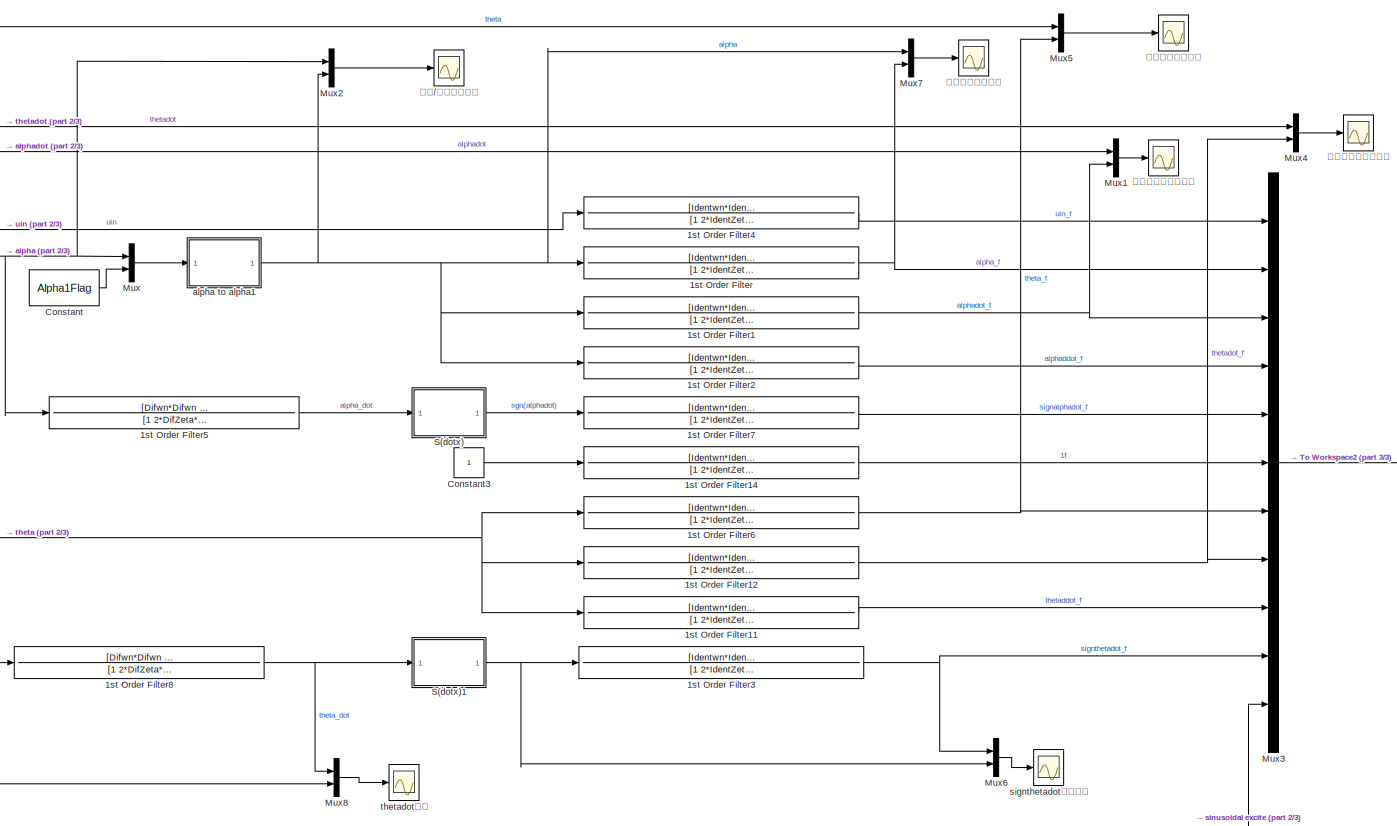
[diagram: root canvas - part 1/3, center side, full height]
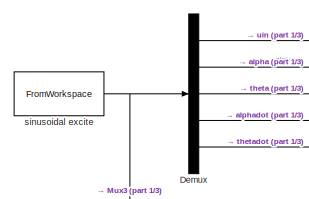
[diagram: root canvas - part 2/3, middle left region]
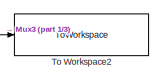
[diagram: root canvas - part 3/3, middle right region]
MODEL slx_19c1c53535d9
KIND model
CONFIG AbsTol = 1e-6
CONFIG EnableMultiTasking = on
CONFIG FixedStep = 0.001
CONFIG MaxStep = auto
CONFIG MinStep = auto
CONFIG RelTol = 1e-6
CONFIG SampleTimeConstraint = Unconstrained
CONFIG SolverName = ode15s
CONFIG StartTime = 0.0
CONFIG StopTime = 10
BLOCK [TransferFcn] 1st Order Filter
  Denominator = [1 2*IdentZeta*Identwn Identwn*Identwn]
  Numerator = [Identwn*Identwn]
BLOCK [TransferFcn] 1st Order Filter1
  Denominator = [1 2*IdentZeta*Identwn Identwn*Identwn]
  Numerator = [Identwn*Identwn 0]
BLOCK [TransferFcn] 1st Order Filter11
  Denominator = [1 2*IdentZeta*Identwn Identwn*Identwn]
  Numerator = [Identwn*Identwn 0 0]
BLOCK [TransferFcn] 1st Order Filter12
  Denominator = [1 2*IdentZeta*Identwn Identwn*Identwn]
  Numerator = [Identwn*Identwn 0]
BLOCK [TransferFcn] 1st Order Filter14
  Denominator = [1 2*IdentZeta*Identwn Identwn*Identwn]
  Numerator = [Identwn*Identwn]
BLOCK [TransferFcn] 1st Order Filter2
  Denominator = [1 2*IdentZeta*Identwn Identwn*Identwn]
  Numerator = [Identwn*Identwn 0 0]
BLOCK [TransferFcn] 1st Order Filter3
  Denominator = [1 2*IdentZeta*Identwn Identwn*Identwn]
  Numerator = [Identwn*Identwn]
BLOCK [TransferFcn] 1st Order Filter4
  Denominator = [1 2*IdentZeta*Identwn Identwn*Identwn]
  Numerator = [Identwn*Identwn]
BLOCK [TransferFcn] 1st Order Filter5
  Denominator = [1 2*DifZeta*Difwn Difwn*Difwn]
  Numerator = [Difwn*Difwn 0]
BLOCK [TransferFcn] 1st Order Filter6
  Denominator = [1 2*IdentZeta*Identwn Identwn*Identwn]
  Numerator = [Identwn*Identwn]
BLOCK [TransferFcn] 1st Order Filter7
  Denominator = [1 2*IdentZeta*Identwn Identwn*Identwn]
  Numerator = [Identwn*Identwn]
BLOCK [TransferFcn] 1st Order Filter8
  Denominator = [1 2*DifZeta*Difwn Difwn*Difwn]
  Numerator = [Difwn*Difwn 0]
BLOCK [Constant] Constant
  Value = Alpha1Flag
BLOCK [Constant] Constant3
BLOCK [Demux] Demux
  Outputs = 5
BLOCK [Mux] Mux
  DisplayOption = bar
  Inputs = 2
BLOCK [Mux] Mux1
  DisplayOption = bar
  Inputs = 2
BLOCK [Mux] Mux2
  DisplayOption = bar
  Inputs = 2
BLOCK [Mux] Mux3
  DisplayOption = bar
  Inputs = 11
BLOCK [Mux] Mux4
  DisplayOption = bar
  Inputs = 2
BLOCK [Mux] Mux5
  DisplayOption = bar
  Inputs = 2
BLOCK [Mux] Mux6
  DisplayOption = bar
  Inputs = 2
BLOCK [Mux] Mux7
  DisplayOption = bar
  Inputs = 2
BLOCK [Mux] Mux8
  DisplayOption = bar
  Inputs = 2
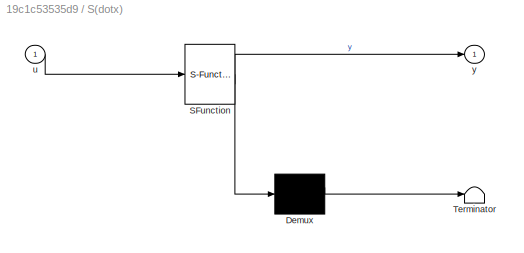
BLOCK [SubSystem] S(dotx)
  ErrorFcn = Stateflow.Translate.translate
  PermitHierarchicalResolution = ExplicitOnly
  SFBlockType = MATLAB Function
  TreatAsAtomicUnit = on
BLOCK [Demux] S(dotx)/ Demux 
  Outputs = 1
BLOCK [S-Function] S(dotx)/ SFunction 
  EnableBusSupport = on
  FunctionName = sf_sfun
  PortCounts = [1 2]
  SFcnIsStateOwnerBlock = off
  SFunctionDeploymentMode = off
  Tag = Stateflow S-Function 7
BLOCK [Terminator] S(dotx)/ Terminator 
BLOCK [Inport] S(dotx)/u
BLOCK [Outport] S(dotx)/y
  VectorParamsAs1DForOutWhenUnconnected = off
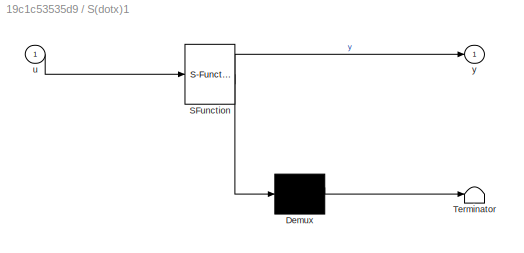
BLOCK [SubSystem] S(dotx)1
  ErrorFcn = Stateflow.Translate.translate
  PermitHierarchicalResolution = ExplicitOnly
  SFBlockType = MATLAB Function
  TreatAsAtomicUnit = on
BLOCK [Demux] S(dotx)1/ Demux 
  Outputs = 1
BLOCK [S-Function] S(dotx)1/ SFunction 
  EnableBusSupport = on
  FunctionName = sf_sfun
  PortCounts = [1 2]
  SFcnIsStateOwnerBlock = off
  SFunctionDeploymentMode = off
  Tag = Stateflow S-Function 8
BLOCK [Terminator] S(dotx)1/ Terminator 
BLOCK [Inport] S(dotx)1/u
BLOCK [Outport] S(dotx)1/y
  VectorParamsAs1DForOutWhenUnconnected = off
BLOCK [ToWorkspace] To Workspace2
  FixptAsFi = on
  MaxDataPoints = inf
  SampleTime = IdentTs
  SaveFormat = Structure With Time
  VariableName = IdentFilterData
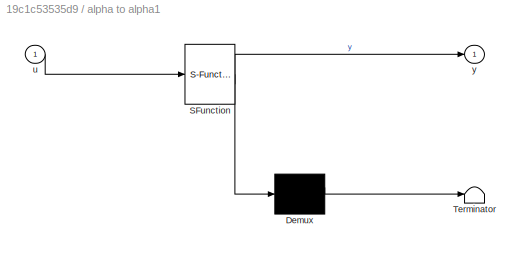
BLOCK [SubSystem] alpha to alpha1
  ErrorFcn = Stateflow.Translate.translate
  PermitHierarchicalResolution = ExplicitOnly
  SFBlockType = MATLAB Function
  TreatAsAtomicUnit = on
BLOCK [Demux] alpha to alpha1/ Demux 
  Outputs = 1
BLOCK [S-Function] alpha to alpha1/ SFunction 
  EnableBusSupport = on
  FunctionName = sf_sfun
  PortCounts = [1 2]
  SFcnIsStateOwnerBlock = off
  SFunctionDeploymentMode = off
  Tag = Stateflow S-Function 9
BLOCK [Terminator] alpha to alpha1/ Terminator 
BLOCK [Inport] alpha to alpha1/u
BLOCK [Outport] alpha to alpha1/y
  VectorParamsAs1DForOutWhenUnconnected = off
BLOCK [Scope] signthetadot滤波比较
  Floating = off
  NumInputPorts = 1
  ScopeSpecificationString = Simulink.scopes.TimeScopeBlockCfg('CurrentConfiguration', extmgr.ConfigurationSet(extmgr.Configuration('Core','General UI',true),extmgr.Configuration('Core','Source UI',true),extmgr.Configuration('Sources','WiredSimulink',true,'DataLoggingSaveFormat','StructureWithTime','DataLoggingDecimation','1','DataLoggingDecimateData',true,'DataLogging',true,'DataLoggingVariableName','ScopeData10'),extmgr.Con...<+1730ch>
BLOCK [FromWorkspace] sinusoidal excite
  SampleTime = IdentTs
  VariableName = OriResData
BLOCK [Scope] thetadot比较
  Floating = off
  NumInputPorts = 1
  ScopeSpecificationString = Simulink.scopes.TimeScopeBlockCfg('CurrentConfiguration', extmgr.ConfigurationSet(extmgr.Configuration('Core','General UI',true),extmgr.Configuration('Core','Source UI',true),extmgr.Configuration('Sources','WiredSimulink',true,'DataLoggingSaveFormat','StructureWithTime','DataLoggingDecimation','1','DataLoggingDecimateData',true,'DataLogging',true,'DataLoggingVariableName','ScopeData30'),extmgr.Con...<+1705ch>
BLOCK [Scope] 倒摆//正摆摆杆角度
  Floating = off
  NumInputPorts = 1
  ScopeSpecificationString = Simulink.scopes.TimeScopeBlockCfg('CurrentConfiguration', extmgr.ConfigurationSet(extmgr.Configuration('Core','General UI',true),extmgr.Configuration('Core','Source UI',true),extmgr.Configuration('Sources','WiredSimulink',true,'DataLoggingSaveFormat','StructureWithTime','DataLoggingDecimation','1','DataLoggingDecimateData',true,'DataLogging',true,'DataLoggingVariableName','ScopeData2'),extmgr.Conf...<+1725ch>
BLOCK [Scope] 摆杆角度滤波比较
  Floating = off
  NumInputPorts = 1
  ScopeSpecificationString = Simulink.scopes.TimeScopeBlockCfg('CurrentConfiguration', extmgr.ConfigurationSet(extmgr.Configuration('Core','General UI',true),extmgr.Configuration('Core','Source UI',true),extmgr.Configuration('Sources','WiredSimulink',true,'DataLoggingSaveFormat','StructureWithTime','DataLoggingDecimation','1','DataLoggingDecimateData',true,'DataLogging',true,'DataLoggingVariableName','ScopeData20'),extmgr.Con...<+1749ch>
BLOCK [Scope] 摆杆角速度滤波比较
  Floating = off
  NumInputPorts = 1
  ScopeSpecificationString = Simulink.scopes.TimeScopeBlockCfg('CurrentConfiguration', extmgr.ConfigurationSet(extmgr.Configuration('Core','General UI',true),extmgr.Configuration('Core','Source UI',true),extmgr.Configuration('Sources','WiredSimulink',true,'DataLoggingSaveFormat','StructureWithTime','DataLoggingDecimation','1','DataLoggingDecimateData',true,'DataLogging',true,'DataLoggingVariableName','ScopeData1'),extmgr.Conf...<+1764ch>
BLOCK [Scope] 摆臂角度滤波比较
  Floating = off
  NumInputPorts = 1
  ScopeSpecificationString = Simulink.scopes.TimeScopeBlockCfg('CurrentConfiguration', extmgr.ConfigurationSet(extmgr.Configuration('Core','General UI',true),extmgr.Configuration('Core','Source UI',true),extmgr.Configuration('Sources','WiredSimulink',true,'DataLoggingSaveFormat','StructureWithTime','DataLoggingDecimation','1','DataLoggingDecimateData',true,'DataLogging',true,'DataLoggingVariableName','ScopeData5'),extmgr.Conf...<+1745ch>
BLOCK [Scope] 摆臂角速度滤波比较
  Floating = off
  NumInputPorts = 1
  ScopeSpecificationString = Simulink.scopes.TimeScopeBlockCfg('CurrentConfiguration', extmgr.ConfigurationSet(extmgr.Configuration('Core','General UI',true),extmgr.Configuration('Core','Source UI',true),extmgr.Configuration('Sources','WiredSimulink',true,'DataLoggingSaveFormat','StructureWithTime','DataLoggingDecimation','1','DataLoggingDecimateData',true,'DataLogging',true,'DataLoggingVariableName','ScopeData4'),extmgr.Conf...<+1764ch>
LINE 1st Order Filter11:1 -> Mux3:9
NET 1st Order Filter12:1 -> Mux3:8, Mux4:2
LINE 1st Order Filter14:1 -> Mux3:6
NET 1st Order Filter1:1 -> Mux1:2, Mux3:3
LINE 1st Order Filter2:1 -> Mux3:4
NET 1st Order Filter3:1 -> Mux3:10, Mux6:1
LINE 1st Order Filter4:1 -> Mux3:1
LINE 1st Order Filter5:1 -> S(dotx):1
NET 1st Order Filter6:1 -> Mux3:7, Mux5:2
LINE 1st Order Filter7:1 -> Mux3:5
NET 1st Order Filter8:1 -> Mux8:1, S(dotx)1:1
NET 1st Order Filter:1 -> Mux3:2, Mux7:2
LINE Constant3:1 -> 1st Order Filter14:1
LINE Constant:1 -> Mux:2
LINE Demux:1 -> 1st Order Filter4:1
NET Demux:2 -> 1st Order Filter5:1, Mux2:1, Mux:1
NET Demux:3 -> 1st Order Filter11:1, 1st Order Filter12:1, 1st Order Filter6:1, 1st Order Filter8:1, Mux5:1
LINE Demux:4 -> Mux1:1
NET Demux:5 -> Mux4:1, Mux8:2
LINE Mux1:1 -> 摆杆角速度滤波比较:1
LINE Mux2:1 -> 倒摆//正摆摆杆角度:1
LINE Mux3:1 -> To Workspace2:1
LINE Mux4:1 -> 摆臂角速度滤波比较:1
LINE Mux5:1 -> 摆臂角度滤波比较:1
LINE Mux6:1 -> signthetadot滤波比较:1
LINE Mux7:1 -> 摆杆角度滤波比较:1
LINE Mux8:1 -> thetadot比较:1
LINE Mux:1 -> alpha to alpha1:1
NET S(dotx)1:1 -> 1st Order Filter3:1, Mux6:2
LINE S(dotx):1 -> 1st Order Filter7:1
NET alpha to alpha1:1 -> 1st Order Filter1:1, 1st Order Filter2:1, 1st Order Filter:1, Mux2:2, Mux7:1
NET sinusoidal excite:1 -> Demux:1, Mux3:11
note: NET lines group one-source signal fan-out (src -> all destinations, sorted); 1:1 wires keep LINE
CHART S(dotx)1 states=1 transitions=1
  STATE_LABEL 'eML_blk_kernel()'
  STATE_LABEL 'SCRIPT:\nfunction y = fcn(u)\n\n%y = 2/pi*atan(900*u);\nsigncoef=1e3;\ny = tanh(signcoef*u);\n'
CHART alpha to alpha1 states=1 transitions=1
  STATE_LABEL 'eML_blk_kernel()'
  STATE_LABEL 'SCRIPT:\nfunction y = fcn(u)\n alpha = u(1); %rad\n flag1 = u(2);\nif(flag1 >0.5) %flag ==1: alpha1=alpha-pi; flag ==0: alpha1 =alpha\n  alpha1 = alpha - 180;\nelse\n    alpha1 = alpha;\nend\ny = alpha1;\n'
CHART S(dotx) states=1 transitions=1
  STATE_LABEL 'eML_blk_kernel()'
  STATE_LABEL 'SCRIPT:\nfunction y = fcn(u)\n\n%y = 2/pi*atan(900*u);\nsigncoef=1e3;\ny = tanh(signcoef*u);\n'
CHART  states=0 transitions=0
CHART  states=0 transitions=0
CHART  states=0 transitions=0
